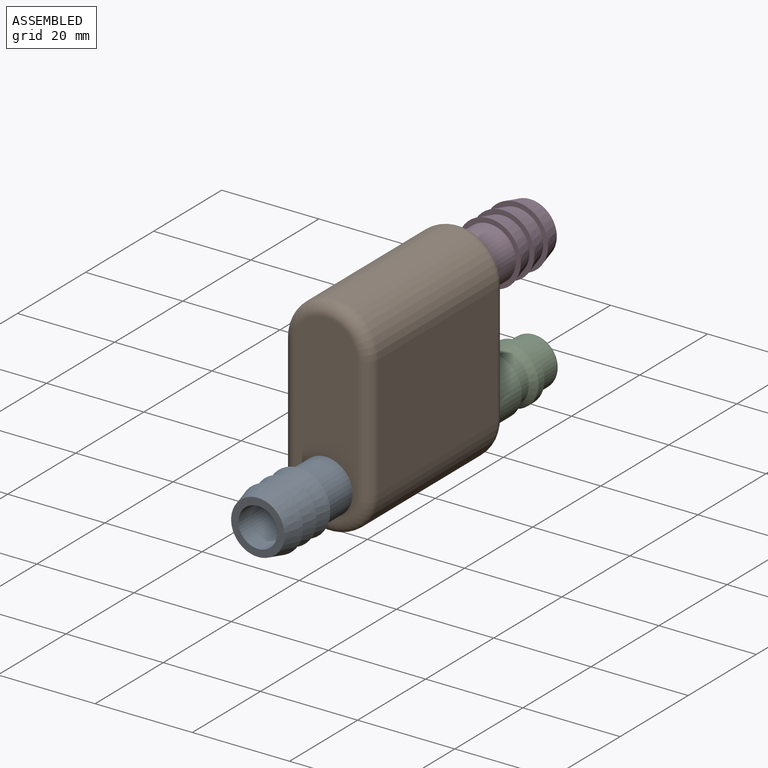
[diagram: assembled view]
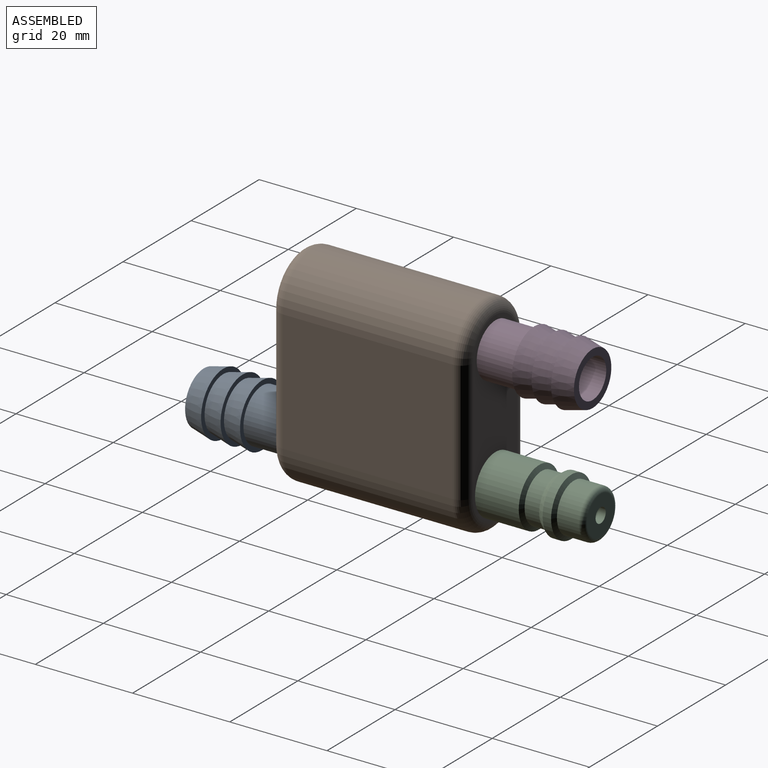
[diagram: assembled view, second angle]
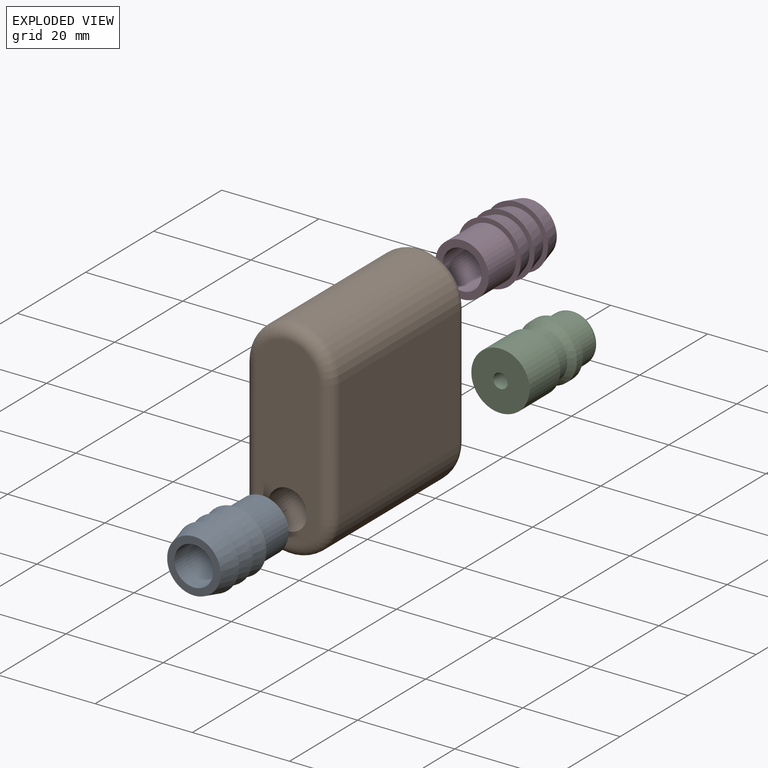
[diagram: exploded view]
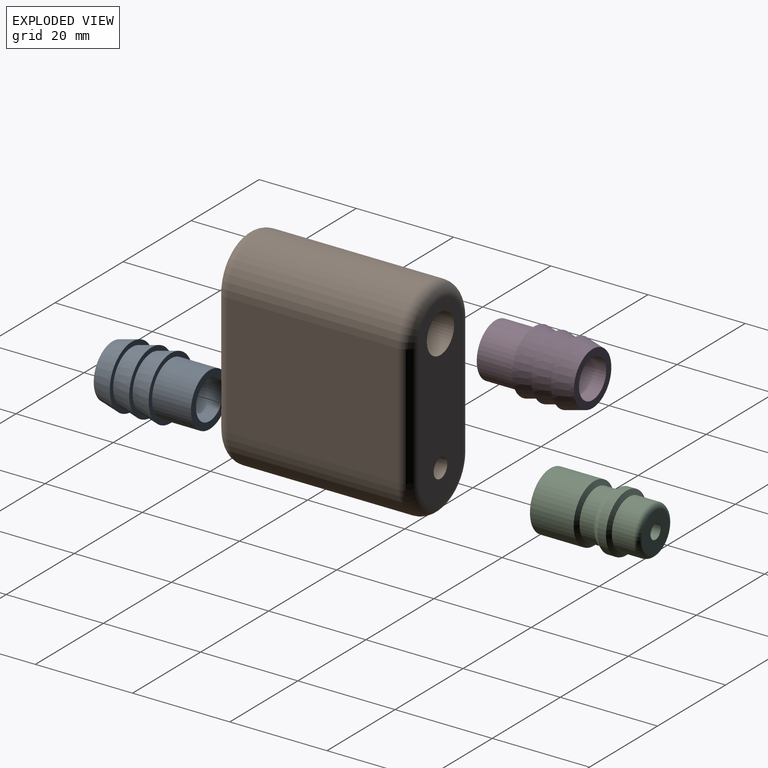
[diagram: exploded view, second angle]
ASSEMBLY  parts=4 mates=3
PART A: 10 faces, bbox 13x20x13 mm
  f0: cylinder r=4mm len=20mm, axis (0,-1,0), area 502.7mm2, adj f1,f9
  f1: plane 11x11mm, normal (0,1,0), area 44.8mm2, adj f0,f2
  f2: cone r=6.5mm half-angle=14deg, axis (0,-1,0), area 155.4mm2, adj f1,f3
  f3: plane 13x13mm, normal (0,-1,0), area 37.7mm2, adj f2,f4
  f4: cone r=6.5mm half-angle=14deg, axis (0,-1,0), area 155.4mm2, adj f3,f5
  f5: plane 13x13mm, normal (0,-1,0), area 37.7mm2, adj f4,f6
  f6: cone r=6.5mm half-angle=14deg, axis (0,-1,0), area 155.4mm2, adj f5,f7
  f7: plane 13x13mm, normal (0,-1,0), area 37.7mm2, adj f6,f8
  f8: cylinder r=5.5mm len=11mm, axis (0,-1,0), area 276.5mm2, adj f7,f9
  f9: plane 11x11mm, normal (0,-1,0), area 44.8mm2, adj f0,f8
PART B: 23 faces, bbox 19.5x40x44.5 mm
  f0: plane 38x13mm, normal (0,-1,0), area 394.9mm2, adj f8,f12,f15,f16,f17,f18
  f1: cylinder r=9mm len=35mm, axis (0,-1,0), area 989.6mm2, adj f2,f4,f16,f22
  f2: plane 35x25mm, normal (1,0,0), area 875mm2, adj f1,f3,f15,f20
  f3: cylinder r=9mm len=35mm, axis (0,-1,0), area 989.6mm2, adj f2,f4,f17,f19
  f4: plane 35x25mm, normal (-1,0,0), area 875mm2, adj f1,f3,f18,f21
  f5: plane 38x13mm, normal (0,1,0), area 407.5mm2, adj f6,f19,f20,f21,f22
  f6: cylinder r=4mm len=15mm, axis (0,1,0), area 377mm2, adj f5,f7
  f7: torus R=5mm, axis (-1,0,0), area 164.8mm2, adj f6,f10,f13
  f8: cylinder r=4mm len=15mm, axis (0,1,0), area 377mm2, adj f0,f9
  f9: torus R=5mm, axis (1,0,0), area 197.4mm2, adj f8,f10
  f10: cylinder r=4mm len=15mm, axis (0,0,1), area 377mm2, adj f7,f9
  f11: cone r=1mm half-angle=3.8deg, axis (0,-1,0), area 141.7mm2, adj f12,f14
  f12: cylinder r=2mm len=15mm, axis (0,-1,0), area 188.5mm2, adj f0,f11
  f13: cone r=4mm half-angle=3.8deg, axis (0,-1,0), area 172.2mm2, adj f7,f14
  f14: plane 4x4mm, normal (0,1,0), area 9.4mm2, adj f11,f13
  f15: cylinder r=2.5mm len=25mm, axis (0,0,1), area 98.2mm2, adj f0,f2,f16,f17
  f16: torus R=6.5mm, axis (0,-1,0), area 99.8mm2, adj f0,f1,f15,f18
  f17: torus R=6.5mm, axis (0,-1,0), area 99.8mm2, adj f0,f3,f15,f18
  f18: cylinder r=2.5mm len=25mm, axis (0,0,-1), area 98.2mm2, adj f0,f4,f16,f17
  f19: torus R=6.5mm, axis (0,-1,0), area 99.8mm2, adj f3,f5,f20,f21
  f20: cylinder r=2.5mm len=25mm, axis (0,0,-1), area 98.2mm2, adj f2,f5,f19,f22
  f21: cylinder r=2.5mm len=25mm, axis (0,0,1), area 98.2mm2, adj f4,f5,f19,f22
  f22: torus R=6.5mm, axis (0,-1,0), area 99.8mm2, adj f1,f5,f20,f21
PART C: 11 faces, bbox 12x12x21.7 mm
  f0: cone r=6mm half-angle=63.4deg, axis (0,0,-1), area 38.6mm2, adj f1,f8
  f1: cylinder r=6mm len=12mm, axis (0,0,-1), area 339.3mm2, adj f0,f2
  f2: plane 12x12mm, normal (0,0,-1), area 106mm2, adj f1,f9
  f3: plane 8x8mm, normal (0,0,1), area 43.2mm2, adj f9,f10
  f4: cylinder r=5mm len=10mm, axis (0,0,-1), area 141.4mm2, adj f5,f10
  f5: cone r=6mm half-angle=63.4deg, axis (0,0,-1), area 38.6mm2, adj f4,f6
  f6: cylinder r=6mm len=12mm, axis (0,0,-1), area 66mm2, adj f5,f7
  f7: cone r=5mm half-angle=35.5deg, axis (0,0,1), area 59.5mm2, adj f6,f8
  f8: cylinder r=5mm len=10mm, axis (0,0,-1), area 94.2mm2, adj f0,f7
  f9: cylinder r=1.5mm len=21.65mm, axis (0,0,1), area 204mm2, adj f2,f3
  f10: torus R=4mm, axis (0,0,1), area 45.8mm2, adj f3,f4
PART D: same geometry as A
PLACE A rot(axis=(1,0,0),180deg) t=(1.5,-52.92,-25)mm
PLACE B rot(axis=(1,0,0),180deg) t=(14.91,-4.92,50.29)mm
PLACE C rot(axis=(-1,0,0),90deg) t=(14.91,-4.92,-25)mm
PLACE D t=(1.5,3.08,0)mm
MATE fastened A.f0 <-> B.f3  axis (0,1,0) through (14.91,-44.92,-25)mm
MATE fastened B.f1 <-> D.f0  axis (0,-1,0) through (14.91,-4.92,0)mm
MATE fastened C.f0 <-> B.f3  axis (0,1,0) through (14.91,-4.92,-25)mm
